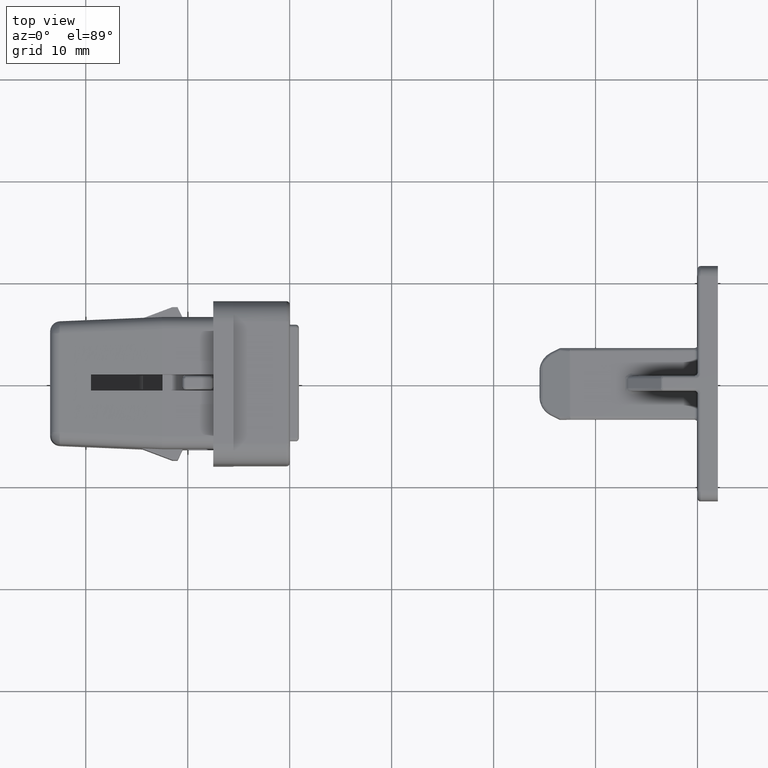
[diagram: clean part render]
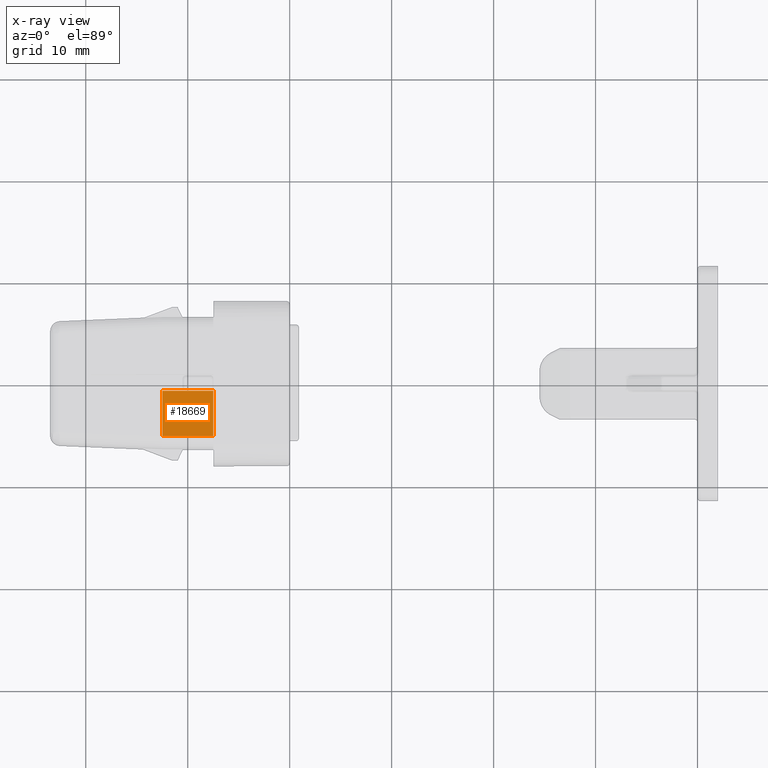
[diagram: x-ray — body ghosted, one internal face saturated and labeled with its STEP entity id]
A machine part, top view, then the same camera in x-ray: the body is ghosted and one INTERNAL B-rep face — a face not visible from any outside direction — is saturated and labeled: STEP entity #18669.
In plain terms, the highlighted face is a freeform B-spline surface patch.
Its self-contained STEP definition (entity closure, byte-faithful):
#18434=CARTESIAN_POINT('',(-7.500000000000000,-0.799999237060497,5.499999046325650));
#18435=VERTEX_POINT('',#18434);
#18441=CARTESIAN_POINT('',(-12.472723840852201,-0.799999237060497,5.499999046325650));
#18442=VERTEX_POINT('',#18441);
#18443=CARTESIAN_POINT('',(-7.500000000000000,-0.799999237060497,5.499999046325650));
#18444=CARTESIAN_POINT('',(-12.472723840852201,-0.799999237060497,5.499999046325650));
#18445=QUASI_UNIFORM_CURVE('',1,(#18443,#18444),.UNSPECIFIED.,.F.,.U.);
#18446=EDGE_CURVE('',#18435,#18442,#18445,.T.);
#18562=CARTESIAN_POINT('',(-7.500000000000000,-5.250000000000000,5.499999046325630));
#18563=VERTEX_POINT('',#18562);
#18577=CARTESIAN_POINT('',(-7.500000000000000,-5.250000000000000,5.499999046325630));
#18578=CARTESIAN_POINT('',(-7.500000000000000,-0.799999237060497,5.499999046325650));
#18579=QUASI_UNIFORM_CURVE('',1,(#18577,#18578),.UNSPECIFIED.,.F.,.U.);
#18580=EDGE_CURVE('',#18563,#18435,#18579,.T.);
#18629=CARTESIAN_POINT('',(-12.472723840852201,-5.250000000000000,5.499999046325630));
#18630=VERTEX_POINT('',#18629);
#18644=CARTESIAN_POINT('',(-12.472723840852201,-5.250000000000000,5.499999046325630));
#18645=CARTESIAN_POINT('',(-7.500000000000000,-5.250000000000000,5.499999046325630));
#18646=QUASI_UNIFORM_CURVE('',1,(#18644,#18645),.UNSPECIFIED.,.F.,.U.);
#18647=EDGE_CURVE('',#18630,#18563,#18646,.T.);
#18654=CARTESIAN_POINT('',(-12.721111387064671,-5.472277529483864,5.499999046325620));
#18655=CARTESIAN_POINT('',(-12.721111387064671,-0.577721588218312,5.499999046325620));
#18656=CARTESIAN_POINT('',(-7.251612320408690,-5.472277529483864,5.499999046325620));
#18657=CARTESIAN_POINT('',(-7.251612320408690,-0.577721588218312,5.499999046325620));
#18658=B_SPLINE_SURFACE_WITH_KNOTS('',1,1,((#18654,#18656),(#18655,#18657)),.UNSPECIFIED.,.F.,.F.,.U.,(2,2),(2,2),(0.0,4.894555941265552),(0.0,5.469499066655978),.UNSPECIFIED.);
#18659=ORIENTED_EDGE('',*,*,#18446,.F.);
#18660=ORIENTED_EDGE('',*,*,#18580,.F.);
#18661=ORIENTED_EDGE('',*,*,#18647,.F.);
#18662=CARTESIAN_POINT('',(-12.472723840852201,-0.799999237060497,5.499999046325650));
#18663=CARTESIAN_POINT('',(-12.472723840852201,-5.250000000000000,5.499999046325630));
#18664=QUASI_UNIFORM_CURVE('',1,(#18662,#18663),.UNSPECIFIED.,.F.,.U.);
#18665=EDGE_CURVE('',#18442,#18630,#18664,.T.);
#18666=ORIENTED_EDGE('',*,*,#18665,.F.);
#18667=EDGE_LOOP('',(#18659,#18660,#18661,#18666));
#18668=FACE_OUTER_BOUND('',#18667,.T.);
#18669=ADVANCED_FACE('',(#18668),#18658,.T.);